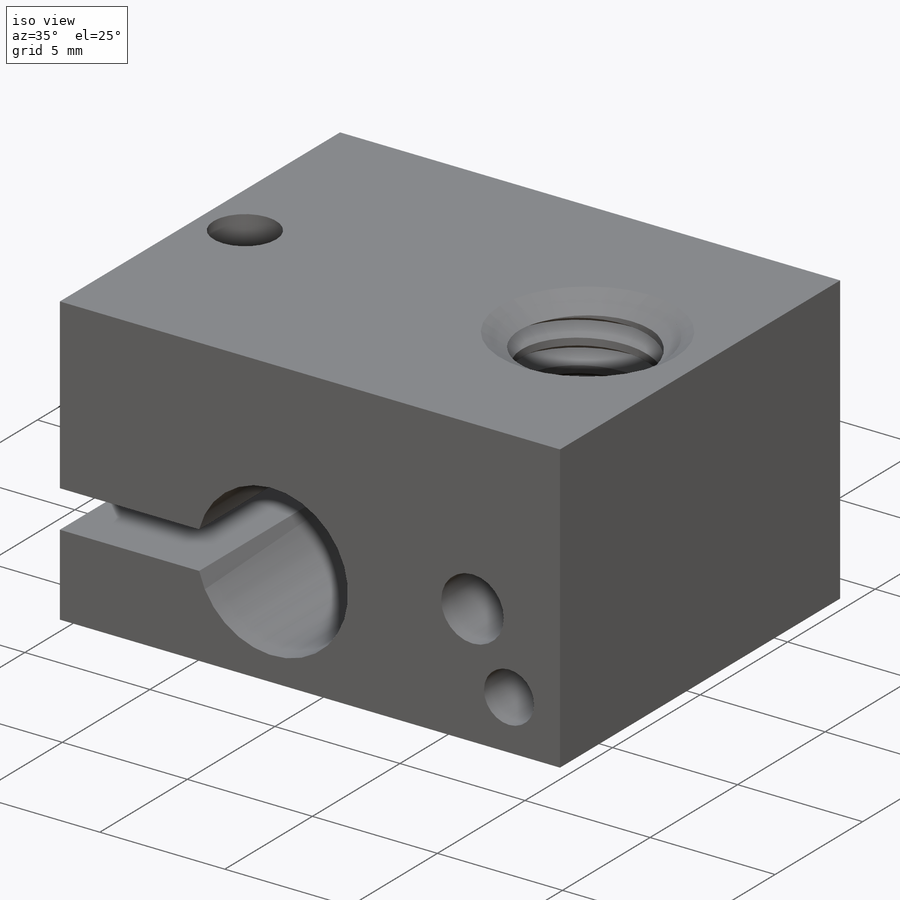
[diagram: iso view]
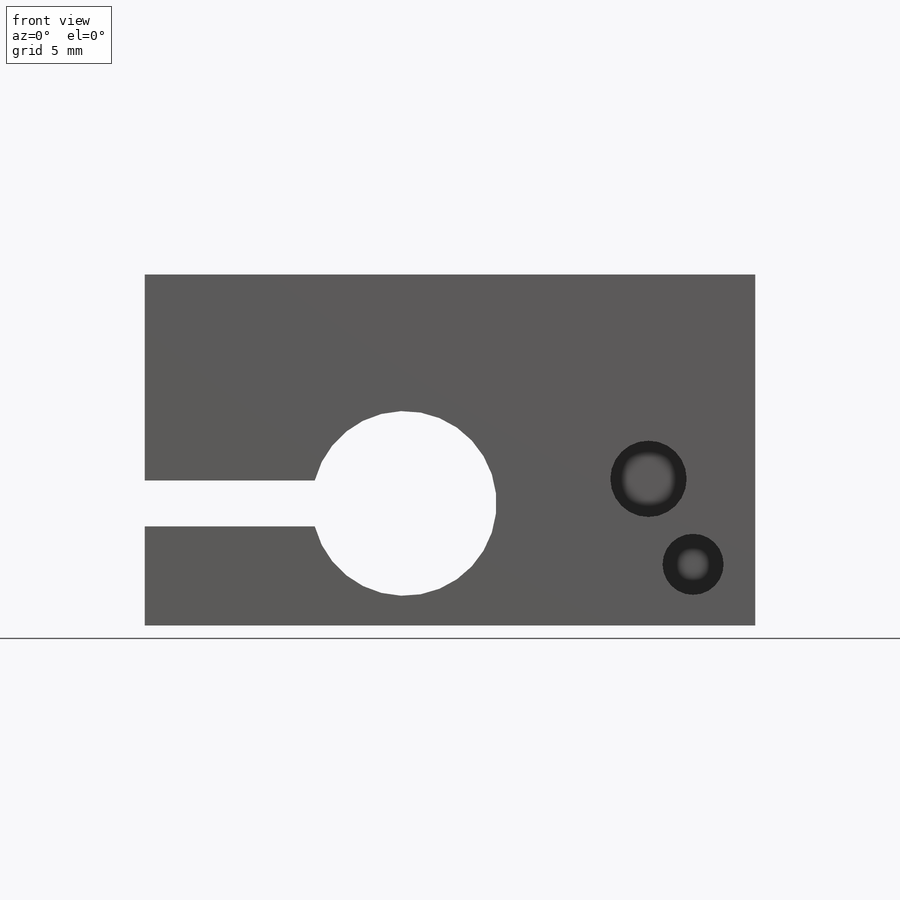
[diagram: front view]
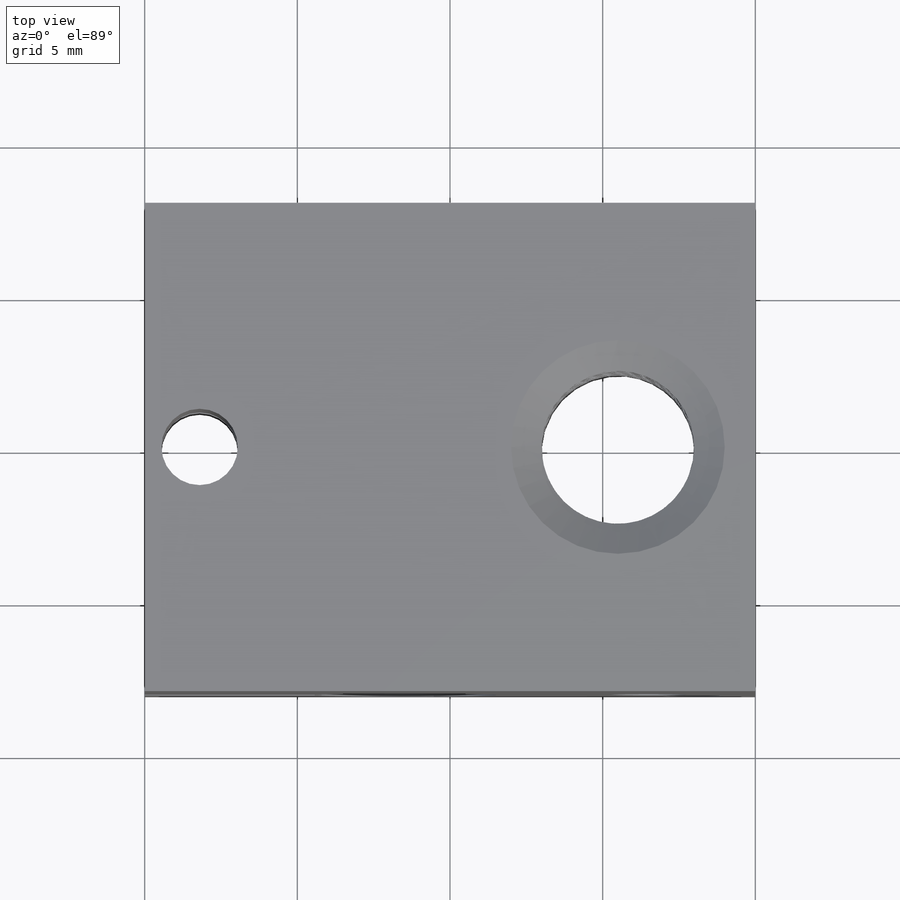
[diagram: top view]
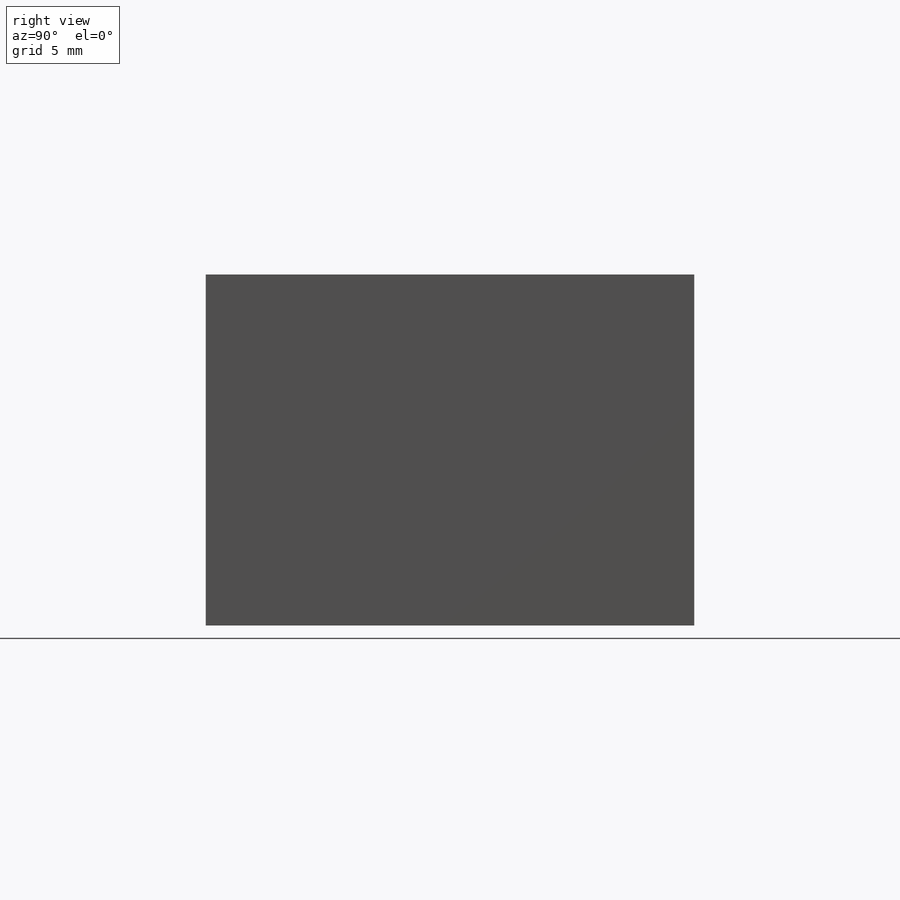
[diagram: right view]
SOLIDWORKS PART (.sldprt)
format: sldprt  version: not decoded by parser v0  size: 485,888 bytes
history: native  units: mm
features: sketch x7, cut_extrude x4, material x1, extrude x1, plane x1, helix x1, chamfer x1, sweep x1 (+13 scaffold rows collapsed)
feature tree (30):
  scaffold x13  (default folders/planes/origin — collapsed)
  material  "Copper"
  sketch  "Sketch1"  dims[D1=20.0mm D2=16.0mm]
  extrude  "Boss-Extrude1"  Depth=11.5mm
  sketch  "Sketch2"  dims[D1=5.0mm D4=2.5mm D2=4.5mm D3=1.8mm]
  cut_extrude  "Cut-Extrude1"  [1 undecoded]
  sketch  "Sketch3"  dims[c1.D2=3.025mm c1.D1=4.0mm c1.D3=11.5mm c1.D4=0.75mm c1.D5=1.0mm c1.D6=1.0mm c2.D5=0.75mm c2.D3=11.5mm]
  cut_extrude  "Cut-Extrude2"  [1 undecoded]
  sketch  "Sketch4"  dims[D5=2.0mm D6=2.5mm D1=2.0mm D2=4.8mm D3=2.0mm D4=3.5mm]
  cut_extrude  "Cut-Extrude3"  Depth=3.4mm
  sketch  "Sketch5"  dims[D1=1.6mm]
  cut_extrude  "Cut-Extrude4"  Depth=4.4mm
  plane  "Plane1"  Offset=3mm
  sketch  "Sketch6"  dims[D1=6.25mm]
  helix  "Helix/Spiral1"  Pitch=20mm
  chamfer  "Chamfer1"  Distance=1mm Angle=30deg
  sketch  "Sketch7"  dims[c1.D1=~0.821189mm c2.D1=30.0deg c2.D2=0.505mm]
  sweep  "Cut-Sweep1"
decode coverage: 12 of 15 modeling features carry decoded parameters
note: ~ marks probable driven/reference dimensions
note: 2 parameter values undecoded
note: suppression state not decoded; provenance and decode notes live in map.json
